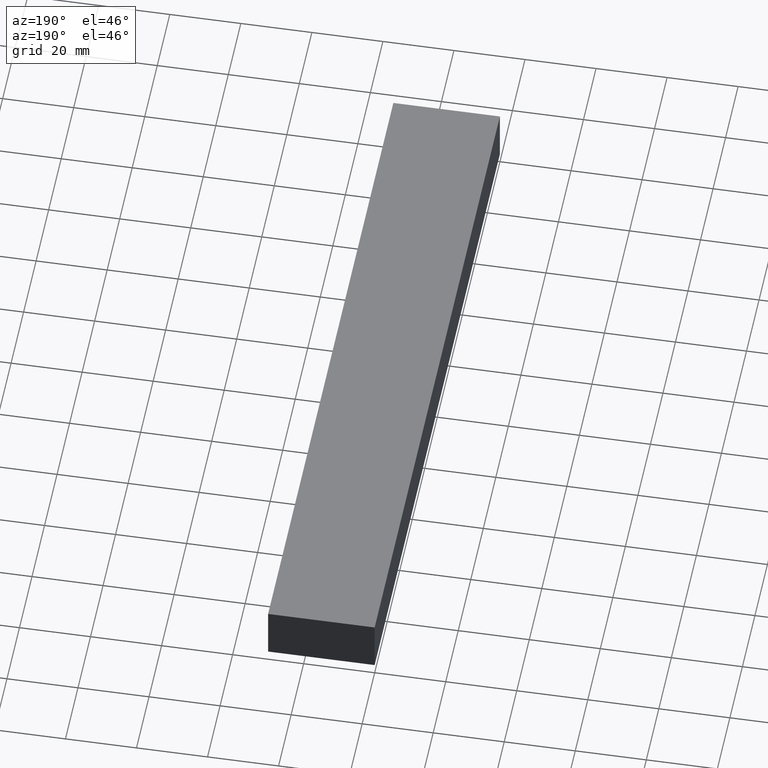
[diagram: clean part render]
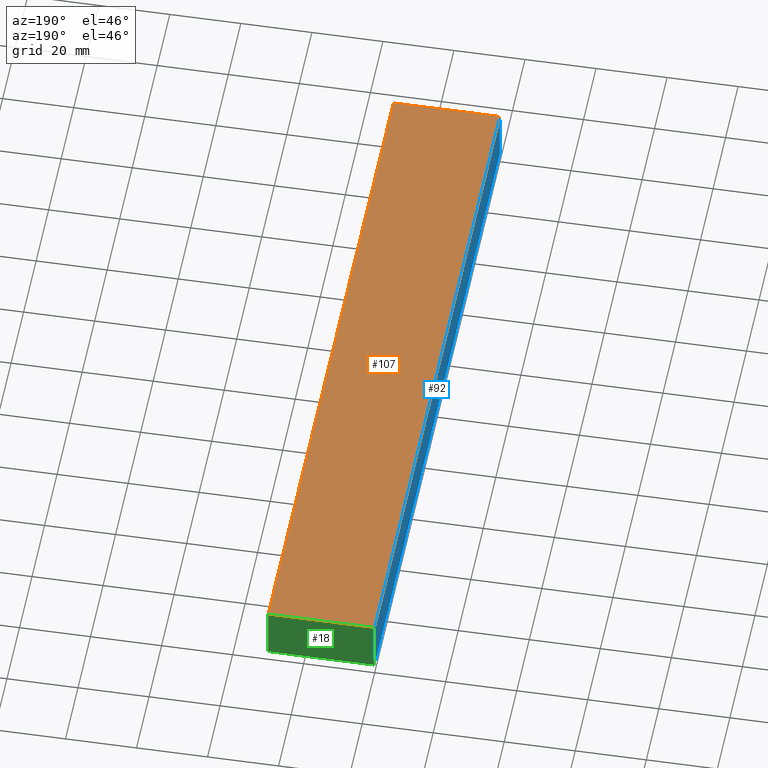
[diagram: same view with three faces highlighted in distinct colors, each labeled with its STEP entity id]
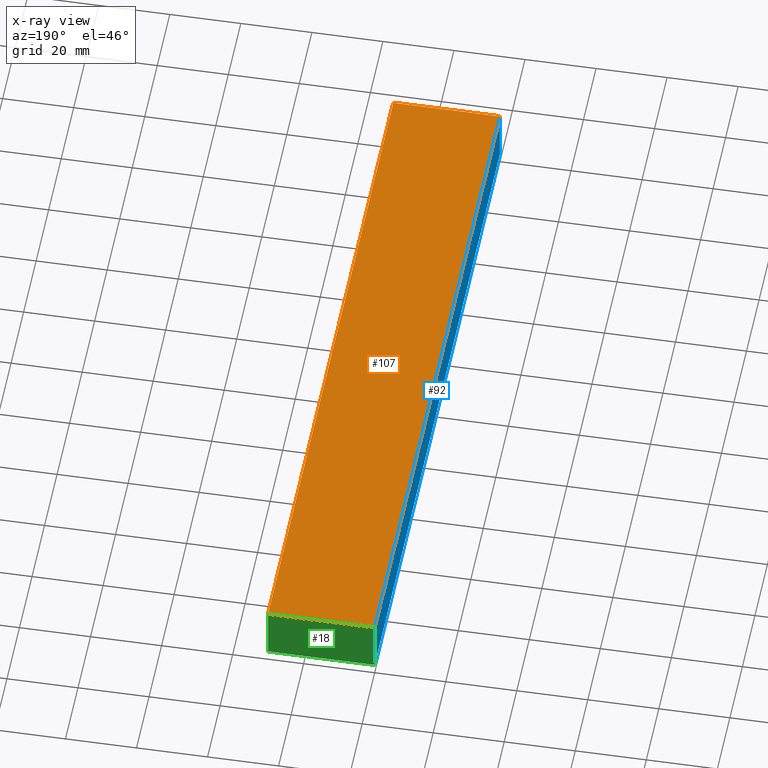
[diagram: x-ray of the same camera — body ghosted, the three highlighted faces saturated]
A machine part, auxiliary view with three faces highlighted in distinct colors.
The next image is the same camera in x-ray (body ghosted, the three faces saturated) — at least one of them is partly hidden behind the body in this view.
Their STEP definitions:

[orange] entity #107 — the highlighted planar face has unit normal (0, 0, 1).
#6 = ORIENTED_EDGE ( 'NONE', *, *, #227, .T. ) ;
#15 = PLANE ( 'NONE',  #55 ) ;
#20 = CARTESIAN_POINT ( 'NONE',  ( 30.00000000000000000, 200.0000000000000000, 10.00000000000000000 ) ) ;
#32 = VECTOR ( 'NONE', #219, 1000.000000000000000 ) ;
#39 = EDGE_CURVE ( 'NONE', #97, #213, #232, .T. ) ;
#40 = VECTOR ( 'NONE', #78, 1000.000000000000000 ) ;
#49 = DIRECTION ( 'NONE',  ( 0.0000000000000000000, 1.000000000000000000, 0.0000000000000000000 ) ) ;
#55 = AXIS2_PLACEMENT_3D ( 'NONE', #224, #136, #201 ) ;
#57 = FACE_OUTER_BOUND ( 'NONE', #216, .T. ) ;
#78 = DIRECTION ( 'NONE',  ( -1.000000000000000000, 0.0000000000000000000, 0.0000000000000000000 ) ) ;
#79 = LINE ( 'NONE', #106, #81 ) ;
#81 = VECTOR ( 'NONE', #222, 1000.000000000000000 ) ;
#83 = LINE ( 'NONE', #159, #40 ) ;
#87 = CARTESIAN_POINT ( 'NONE',  ( 0.0000000000000000000, 0.0000000000000000000, 10.00000000000000000 ) ) ;
#97 = VERTEX_POINT ( 'NONE', #103 ) ;
#100 = ORIENTED_EDGE ( 'NONE', *, *, #39, .T. ) ;
#101 = CARTESIAN_POINT ( 'NONE',  ( 30.00000000000000000, 0.0000000000000000000, 10.00000000000000000 ) ) ;
#102 = ORIENTED_EDGE ( 'NONE', *, *, #163, .T. ) ;
#103 = CARTESIAN_POINT ( 'NONE',  ( 0.0000000000000000000, 0.0000000000000000000, 10.00000000000000000 ) ) ;
#106 = CARTESIAN_POINT ( 'NONE',  ( 0.0000000000000000000, 200.0000000000000000, 10.00000000000000000 ) ) ;
#107 = ADVANCED_FACE ( 'NONE', ( #57 ), #15, .T. ) ;
#117 = EDGE_CURVE ( 'NONE', #204, #97, #79, .T. ) ;
#126 = VECTOR ( 'NONE', #49, 1000.000000000000000 ) ;
#132 = CARTESIAN_POINT ( 'NONE',  ( 0.0000000000000000000, 200.0000000000000000, 10.00000000000000000 ) ) ;
#135 = CARTESIAN_POINT ( 'NONE',  ( 30.00000000000000000, 0.0000000000000000000, 10.00000000000000000 ) ) ;
#136 = DIRECTION ( 'NONE',  ( -0.0000000000000000000, 0.0000000000000000000, 1.000000000000000000 ) ) ;
#141 = VERTEX_POINT ( 'NONE', #20 ) ;
#159 = CARTESIAN_POINT ( 'NONE',  ( 30.00000000000000000, 200.0000000000000000, 10.00000000000000000 ) ) ;
#163 = EDGE_CURVE ( 'NONE', #141, #204, #83, .T. ) ;
#167 = LINE ( 'NONE', #135, #126 ) ;
#201 = DIRECTION ( 'NONE',  ( 1.000000000000000000, 0.0000000000000000000, 0.0000000000000000000 ) ) ;
#204 = VERTEX_POINT ( 'NONE', #132 ) ;
#213 = VERTEX_POINT ( 'NONE', #101 ) ;
#216 = EDGE_LOOP ( 'NONE', ( #229, #100, #6, #102 ) ) ;
#219 = DIRECTION ( 'NONE',  ( 1.000000000000000000, 0.0000000000000000000, 0.0000000000000000000 ) ) ;
#222 = DIRECTION ( 'NONE',  ( 0.0000000000000000000, -1.000000000000000000, 0.0000000000000000000 ) ) ;
#224 = CARTESIAN_POINT ( 'NONE',  ( 0.0000000000000000000, 0.0000000000000000000, 10.00000000000000000 ) ) ;
#227 = EDGE_CURVE ( 'NONE', #213, #141, #167, .T. ) ;
#229 = ORIENTED_EDGE ( 'NONE', *, *, #117, .T. ) ;
#232 = LINE ( 'NONE', #87, #32 ) ;

[blue] entity #92 — the highlighted planar face has unit normal (-1, 0, 0).
#8 = ORIENTED_EDGE ( 'NONE', *, *, #117, .F. ) ;
#19 = DIRECTION ( 'NONE',  ( 0.0000000000000000000, 0.0000000000000000000, 1.000000000000000000 ) ) ;
#24 = VERTEX_POINT ( 'NONE', #74 ) ;
#29 = AXIS2_PLACEMENT_3D ( 'NONE', #205, #235, #19 ) ;
#42 = ORIENTED_EDGE ( 'NONE', *, *, #161, .T. ) ;
#44 = VECTOR ( 'NONE', #156, 1000.000000000000000 ) ;
#56 = PLANE ( 'NONE',  #29 ) ;
#62 = VECTOR ( 'NONE', #68, 1000.000000000000000 ) ;
#68 = DIRECTION ( 'NONE',  ( 0.0000000000000000000, 0.0000000000000000000, 1.000000000000000000 ) ) ;
#74 = CARTESIAN_POINT ( 'NONE',  ( 0.0000000000000000000, 0.0000000000000000000, -4.999999999999999100 ) ) ;
#77 = LINE ( 'NONE', #202, #44 ) ;
#79 = LINE ( 'NONE', #106, #81 ) ;
#80 = LINE ( 'NONE', #86, #62 ) ;
#81 = VECTOR ( 'NONE', #222, 1000.000000000000000 ) ;
#84 = VERTEX_POINT ( 'NONE', #199 ) ;
#86 = CARTESIAN_POINT ( 'NONE',  ( 0.0000000000000000000, 200.0000000000000000, -4.999999999999999100 ) ) ;
#92 = ADVANCED_FACE ( 'NONE', ( #123 ), #56, .T. ) ;
#97 = VERTEX_POINT ( 'NONE', #103 ) ;
#99 = EDGE_CURVE ( 'NONE', #84, #204, #80, .T. ) ;
#103 = CARTESIAN_POINT ( 'NONE',  ( 0.0000000000000000000, 0.0000000000000000000, 10.00000000000000000 ) ) ;
#106 = CARTESIAN_POINT ( 'NONE',  ( 0.0000000000000000000, 200.0000000000000000, 10.00000000000000000 ) ) ;
#108 = EDGE_LOOP ( 'NONE', ( #8, #212, #42, #181 ) ) ;
#116 = CARTESIAN_POINT ( 'NONE',  ( 0.0000000000000000000, 0.0000000000000000000, -4.999999999999999100 ) ) ;
#117 = EDGE_CURVE ( 'NONE', #204, #97, #79, .T. ) ;
#123 = FACE_OUTER_BOUND ( 'NONE', #108, .T. ) ;
#132 = CARTESIAN_POINT ( 'NONE',  ( 0.0000000000000000000, 200.0000000000000000, 10.00000000000000000 ) ) ;
#133 = LINE ( 'NONE', #116, #210 ) ;
#156 = DIRECTION ( 'NONE',  ( 0.0000000000000000000, -1.000000000000000000, 0.0000000000000000000 ) ) ;
#161 = EDGE_CURVE ( 'NONE', #84, #24, #77, .T. ) ;
#171 = EDGE_CURVE ( 'NONE', #24, #97, #133, .T. ) ;
#181 = ORIENTED_EDGE ( 'NONE', *, *, #171, .T. ) ;
#199 = CARTESIAN_POINT ( 'NONE',  ( 0.0000000000000000000, 200.0000000000000000, -4.999999999999999100 ) ) ;
#202 = CARTESIAN_POINT ( 'NONE',  ( 0.0000000000000000000, 200.0000000000000000, -4.999999999999999100 ) ) ;
#204 = VERTEX_POINT ( 'NONE', #132 ) ;
#205 = CARTESIAN_POINT ( 'NONE',  ( 0.0000000000000000000, 200.0000000000000000, -4.999999999999999100 ) ) ;
#210 = VECTOR ( 'NONE', #220, 1000.000000000000000 ) ;
#212 = ORIENTED_EDGE ( 'NONE', *, *, #99, .F. ) ;
#220 = DIRECTION ( 'NONE',  ( 0.0000000000000000000, 0.0000000000000000000, 1.000000000000000000 ) ) ;
#222 = DIRECTION ( 'NONE',  ( 0.0000000000000000000, -1.000000000000000000, 0.0000000000000000000 ) ) ;
#235 = DIRECTION ( 'NONE',  ( -1.000000000000000000, 0.0000000000000000000, 0.0000000000000000000 ) ) ;

[green] entity #18 — the highlighted planar face has unit normal (0, 1, 0).
#1 = ORIENTED_EDGE ( 'NONE', *, *, #69, .F. ) ;
#7 = CARTESIAN_POINT ( 'NONE',  ( 30.00000000000000000, 200.0000000000000000, -4.999999999999999100 ) ) ;
#18 = ADVANCED_FACE ( 'NONE', ( #155 ), #190, .T. ) ;
#20 = CARTESIAN_POINT ( 'NONE',  ( 30.00000000000000000, 200.0000000000000000, 10.00000000000000000 ) ) ;
#21 = EDGE_CURVE ( 'NONE', #90, #84, #91, .T. ) ;
#33 = AXIS2_PLACEMENT_3D ( 'NONE', #121, #180, #217 ) ;
#40 = VECTOR ( 'NONE', #78, 1000.000000000000000 ) ;
#62 = VECTOR ( 'NONE', #68, 1000.000000000000000 ) ;
#68 = DIRECTION ( 'NONE',  ( 0.0000000000000000000, 0.0000000000000000000, 1.000000000000000000 ) ) ;
#69 = EDGE_CURVE ( 'NONE', #90, #141, #112, .T. ) ;
#78 = DIRECTION ( 'NONE',  ( -1.000000000000000000, 0.0000000000000000000, 0.0000000000000000000 ) ) ;
#80 = LINE ( 'NONE', #86, #62 ) ;
#83 = LINE ( 'NONE', #159, #40 ) ;
#84 = VERTEX_POINT ( 'NONE', #199 ) ;
#86 = CARTESIAN_POINT ( 'NONE',  ( 0.0000000000000000000, 200.0000000000000000, -4.999999999999999100 ) ) ;
#90 = VERTEX_POINT ( 'NONE', #7 ) ;
#91 = LINE ( 'NONE', #185, #111 ) ;
#99 = EDGE_CURVE ( 'NONE', #84, #204, #80, .T. ) ;
#111 = VECTOR ( 'NONE', #162, 1000.000000000000000 ) ;
#112 = LINE ( 'NONE', #238, #119 ) ;
#119 = VECTOR ( 'NONE', #138, 1000.000000000000000 ) ;
#121 = CARTESIAN_POINT ( 'NONE',  ( 30.00000000000000000, 200.0000000000000000, -4.999999999999999100 ) ) ;
#127 = ORIENTED_EDGE ( 'NONE', *, *, #21, .T. ) ;
#132 = CARTESIAN_POINT ( 'NONE',  ( 0.0000000000000000000, 200.0000000000000000, 10.00000000000000000 ) ) ;
#138 = DIRECTION ( 'NONE',  ( 0.0000000000000000000, 0.0000000000000000000, 1.000000000000000000 ) ) ;
#139 = ORIENTED_EDGE ( 'NONE', *, *, #163, .F. ) ;
#141 = VERTEX_POINT ( 'NONE', #20 ) ;
#155 = FACE_OUTER_BOUND ( 'NONE', #179, .T. ) ;
#159 = CARTESIAN_POINT ( 'NONE',  ( 30.00000000000000000, 200.0000000000000000, 10.00000000000000000 ) ) ;
#162 = DIRECTION ( 'NONE',  ( -1.000000000000000000, 0.0000000000000000000, 0.0000000000000000000 ) ) ;
#163 = EDGE_CURVE ( 'NONE', #141, #204, #83, .T. ) ;
#179 = EDGE_LOOP ( 'NONE', ( #139, #1, #127, #223 ) ) ;
#180 = DIRECTION ( 'NONE',  ( 0.0000000000000000000, 1.000000000000000000, -0.0000000000000000000 ) ) ;
#185 = CARTESIAN_POINT ( 'NONE',  ( 30.00000000000000000, 200.0000000000000000, -4.999999999999999100 ) ) ;
#190 = PLANE ( 'NONE',  #33 ) ;
#199 = CARTESIAN_POINT ( 'NONE',  ( 0.0000000000000000000, 200.0000000000000000, -4.999999999999999100 ) ) ;
#204 = VERTEX_POINT ( 'NONE', #132 ) ;
#217 = DIRECTION ( 'NONE',  ( 0.0000000000000000000, 0.0000000000000000000, 1.000000000000000000 ) ) ;
#223 = ORIENTED_EDGE ( 'NONE', *, *, #99, .T. ) ;
#238 = CARTESIAN_POINT ( 'NONE',  ( 30.00000000000000000, 200.0000000000000000, -4.999999999999999100 ) ) ;